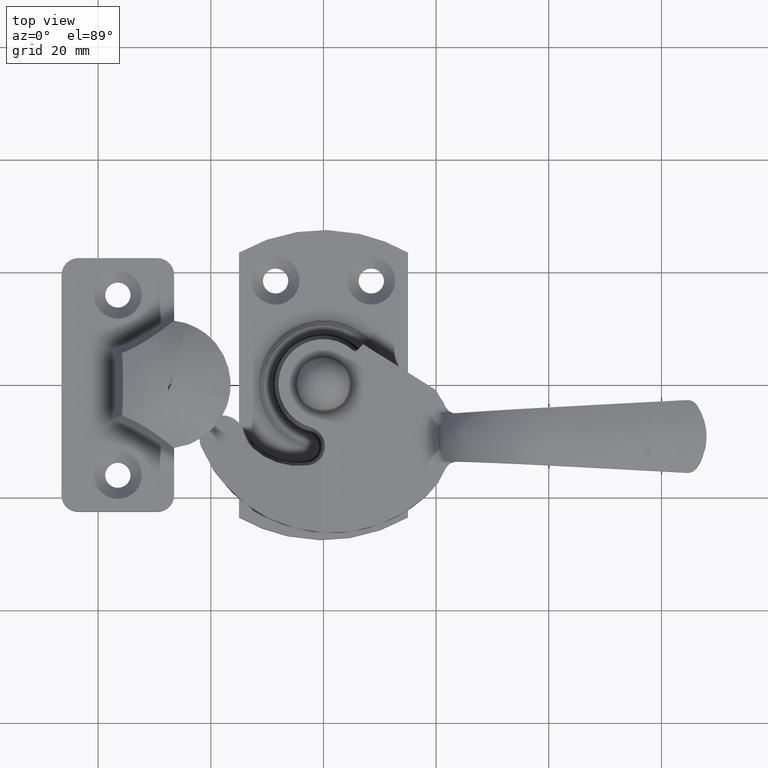
[diagram: clean part render]
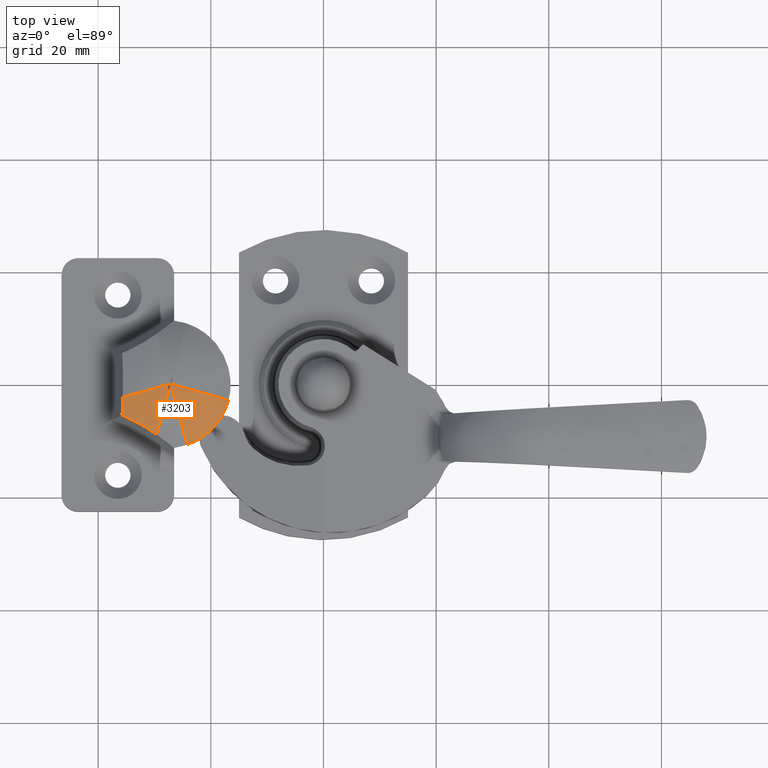
[diagram: same view with one face highlighted and labeled with its STEP entity id]
A machine part, top view. The second image highlights one B-rep face of the part: STEP entity #3203.
In plain terms, the highlighted face is a freeform B-spline surface patch.
Its self-contained STEP definition (entity closure, byte-faithful):
#2411=CARTESIAN_POINT('',(18.365678131114350,2.861039895896495,11.261993442719820));
#2412=VERTEX_POINT('',#2411);
#2432=CARTESIAN_POINT('',(25.677245148327948,10.757284593454560,10.931948783105479));
#2433=VERTEX_POINT('',#2432);
#2434=CARTESIAN_POINT('',(25.677245148327948,10.757284593454560,10.931948783105479));
#2435=CARTESIAN_POINT('',(25.240854001310929,10.607272521120469,11.043764852354400));
#2436=CARTESIAN_POINT('',(24.815644721128699,10.431518623313940,11.143332761826141));
#2437=CARTESIAN_POINT('',(23.987546524572931,10.028930021806969,11.318824244292779));
#2438=CARTESIAN_POINT('',(23.584655336992540,9.802100957825063,11.394751396718769));
#2439=CARTESIAN_POINT('',(22.997769002346921,9.422161176619554,11.490792908742771));
#2440=CARTESIAN_POINT('',(22.805056508404810,9.288880596470900,11.519823718875941));
#2441=CARTESIAN_POINT('',(22.520531366358060,9.078652507471537,11.558798271009399));
#2442=CARTESIAN_POINT('',(22.426635211187950,9.006987471722486,11.570999110479720));
#2443=CARTESIAN_POINT('',(22.241743401349709,8.861275313663517,11.593706198779060));
#2444=CARTESIAN_POINT('',(22.150595181073751,8.787116450533127,11.604233628197900));
#2445=CARTESIAN_POINT('',(21.701282657013959,8.409869640754010,11.652803633497470));
#2446=CARTESIAN_POINT('',(21.362331198463099,8.087497631274948,11.678695824224400));
#2447=CARTESIAN_POINT('',(20.725083793353441,7.401977305637913,11.705332435611069));
#2448=CARTESIAN_POINT('',(20.426783214629729,7.038833456865129,11.706076359383379));
#2449=CARTESIAN_POINT('',(20.080284481478540,6.558463704313647,11.690980942780790));
#2450=CARTESIAN_POINT('',(20.012262550301841,6.460981139793413,11.687150574156520));
#2451=CARTESIAN_POINT('',(19.879905746535041,6.264844894422555,11.677944244569771));
#2452=CARTESIAN_POINT('',(19.815439772635379,6.166015630656279,11.672564248461400));
#2453=CARTESIAN_POINT('',(19.627101937462310,5.867277745651619,11.654138004546780));
#2454=CARTESIAN_POINT('',(19.508285110038742,5.665121278559589,11.638807774179330));
#2455=CARTESIAN_POINT('',(19.171634609738678,5.049839594623275,11.583943469077230));
#2456=CARTESIAN_POINT('',(18.973527381739871,4.627935347721537,11.535563825986420));
#2457=CARTESIAN_POINT('',(18.715550964563160,3.977604648666230,11.445758744579940));
#2458=CARTESIAN_POINT('',(18.636108100965689,3.757907022318186,11.412943631017409));
#2459=CARTESIAN_POINT('',(18.526899431701992,3.423914684167026,11.359399816153701));
#2460=CARTESIAN_POINT('',(18.492149109989839,3.311800672463832,11.340822831160610));
#2461=CARTESIAN_POINT('',(18.426263904747810,3.087009633149371,11.302389102966830));
#2462=CARTESIAN_POINT('',(18.395090642445581,2.974220951707923,11.282515038120520));
#2463=CARTESIAN_POINT('',(18.365678131114350,2.861039895896490,11.261993442719820));
#2464=B_SPLINE_CURVE_WITH_KNOTS('',3,(#2434,#2435,#2436,#2437,#2438,#2439,#2440,#2441,#2442,#2443,#2444,#2445,#2446,#2447,#2448,#2449,#2450,#2451,#2452,#2453,#2454,#2455,#2456,#2457,#2458,#2459,#2460,#2461,#2462,#2463),.UNSPECIFIED.,.F.,.U.,(4,2,2,2,2,2,2,2,2,2,2,2,2,2,4),(0.0,0.124999999999999,0.249999999999998,0.312499999999997,0.343749999999997,0.374999999999997,0.499999999999997,0.624999999999996,0.656249999999996,0.687499999999996,0.749999999999997,0.874999999999998,0.937499999999999,0.968750000000000,1.0),.UNSPECIFIED.);
#2465=EDGE_CURVE('',#2433,#2412,#2464,.T.);
#2870=CARTESIAN_POINT('',(17.185327996081877,3.134791790010538,10.363983343183341));
#2871=CARTESIAN_POINT('',(17.598674372849629,3.022065937338569,10.706264618682408));
#2872=CARTESIAN_POINT('',(18.022289872309148,2.906482679786177,11.025947226188118));
#2873=CARTESIAN_POINT('',(18.888804623664434,2.670014710081690,11.622729442665488));
#2874=CARTESIAN_POINT('',(19.333395651057721,2.548661578945549,11.900682617931135));
#2875=CARTESIAN_POINT('',(20.677858980876408,2.181694472315221,12.663646759732851));
#2876=CARTESIAN_POINT('',(21.590426153214597,1.932486243733294,13.080660365395767));
#2877=CARTESIAN_POINT('',(23.443760669031427,1.426358517446661,13.754210075530986));
#2878=CARTESIAN_POINT('',(24.384556085363666,1.169383337960498,14.010498167923782));
#2879=CARTESIAN_POINT('',(26.292825474849881,0.648182793052967,14.369354594673640));
#2880=CARTESIAN_POINT('',(27.261528917694825,0.382918334876004,14.471438073972124));
#2881=CARTESIAN_POINT('',(28.293183906304638,0.102180935357565,14.496254273854836));
#2882=CARTESIAN_POINT('',(28.353901662644009,0.085671007899766,14.497408285774215));
#2883=CARTESIAN_POINT('',(28.475761857829028,0.052757893873617,14.499104540741435));
#2884=CARTESIAN_POINT('',(28.535401417515462,0.035885299775749,14.499647737873818));
#2885=CARTESIAN_POINT('',(28.616497445790362,0.016744890382303,14.499940973697834));
#2886=CARTESIAN_POINT('',(28.632791056820583,0.012544690088315,14.499982279737454));
#2887=CARTESIAN_POINT('',(28.673931208819919,0.009171570960723,14.500009715213817));
#2888=CARTESIAN_POINT('',(28.694563171611204,0.012737327576929,14.499984230548488));
#2889=CARTESIAN_POINT('',(28.745193223452063,0.023412602639526,14.499854633230242));
#2890=CARTESIAN_POINT('',(28.775176477807090,0.031657391664741,14.499691023032197));
#2891=CARTESIAN_POINT('',(28.866923658770848,0.055853048227450,14.498975413827981));
#2892=CARTESIAN_POINT('',(28.927184326709476,0.072238542399985,14.498196883218091));
#2893=CARTESIAN_POINT('',(29.228779537060518,0.154058660654774,14.492798568754241));
#2894=CARTESIAN_POINT('',(29.469049716385726,0.219767042804707,14.483659591685329));
#2895=CARTESIAN_POINT('',(30.189786511483216,0.416515241124263,14.441789748799991));
#2896=CARTESIAN_POINT('',(30.669926851603353,0.547664570239424,14.394545214879219));
#2897=CARTESIAN_POINT('',(32.104022014479398,0.939358199848610,14.194847017631195));
#2898=CARTESIAN_POINT('',(33.047297869558520,1.197021267361638,13.985614439865866));
#2899=CARTESIAN_POINT('',(34.907361181792638,1.705019433910360,13.411110663524129));
#2900=CARTESIAN_POINT('',(35.824153468287776,1.955403539474686,13.046013674127249));
#2901=CARTESIAN_POINT('',(37.627940312552873,2.447884192398131,12.142608613815252));
#2902=CARTESIAN_POINT('',(38.516630197730585,2.690489268285158,11.600929932378262));
#2903=CARTESIAN_POINT('',(39.354036935679844,2.918895729935312,10.982868027025312));
#2904=CARTESIAN_POINT('',(17.199141583266019,3.158000524204717,10.375375376536926));
#2905=CARTESIAN_POINT('',(17.612542061386911,3.044215383406191,10.717003876942075));
#2906=CARTESIAN_POINT('',(18.036108991301628,2.927603699678433,11.036009143655502));
#2907=CARTESIAN_POINT('',(18.902336848557241,2.689103806004705,11.631421074515286));
#2908=CARTESIAN_POINT('',(19.346685856461644,2.566747455029772,11.908680654246423));
#2909=CARTESIAN_POINT('',(20.690164150146870,2.196811395858761,12.669611587797714));
#2910=CARTESIAN_POINT('',(21.601746057014090,1.945738536238633,13.085377900367863));
#2911=CARTESIAN_POINT('',(23.452644701369188,1.435950841717146,13.756796165652364));
#2912=CARTESIAN_POINT('',(24.391992645253438,1.177202722819779,14.012215657461198));
#2913=CARTESIAN_POINT('',(26.297081840366097,0.652466420201220,14.369824742641656));
#2914=CARTESIAN_POINT('',(27.264060810553602,0.385450012948784,14.471540772766195));
#2915=CARTESIAN_POINT('',(28.293855948444961,0.102856646542295,14.496267753805133));
#2916=CARTESIAN_POINT('',(28.354464119141664,0.086237525088111,14.497417613238621));
#2917=CARTESIAN_POINT('',(28.476104303061000,0.053106748044091,14.499107763806819));
#2918=CARTESIAN_POINT('',(28.535636155352616,0.036122584920879,14.499649005835957));
#2919=CARTESIAN_POINT('',(28.616585711141166,0.016855612625714,14.499941186150574));
#2920=CARTESIAN_POINT('',(28.632849892558610,0.012627639305920,14.499982343574340));
#2921=CARTESIAN_POINT('',(28.673915736354921,0.009232216064017,14.500009680188349));
#2922=CARTESIAN_POINT('',(28.694510433205860,0.012821550517640,14.499984287289603));
#2923=CARTESIAN_POINT('',(28.745049037346956,0.023567414056239,14.499855156506698));
#2924=CARTESIAN_POINT('',(28.774978138171143,0.031866720730550,14.499692135161942));
#2925=CARTESIAN_POINT('',(28.866559626945410,0.056222372603933,14.498979101584631));
#2926=CARTESIAN_POINT('',(28.926711486865262,0.072716222091915,14.498203372902401));
#2927=CARTESIAN_POINT('',(29.227762388609310,0.155077439336090,14.492824481434587));
#2928=CARTESIAN_POINT('',(29.467599714250479,0.221220521707652,14.483718374284111));
#2929=CARTESIAN_POINT('',(30.187045008296984,0.419272421578177,14.441998677188529));
#2930=CARTESIAN_POINT('',(30.666334586405036,0.551293151767994,14.394923029033460));
#2931=CARTESIAN_POINT('',(32.097955067355329,0.945608834052207,14.195928653939035));
#2932=CARTESIAN_POINT('',(33.039691570328884,1.205020143504783,13.987422146103281));
#2933=CARTESIAN_POINT('',(34.897070630366414,1.716607442814842,13.414801776509210));
#2934=CARTESIAN_POINT('',(35.812723797982706,1.968812325552884,13.050848144383609));
#2935=CARTESIAN_POINT('',(37.614828559857763,2.465104962383238,12.149997179964224));
#2936=CARTESIAN_POINT('',(38.502978031125529,2.709683174578553,11.609717746299337));
#2937=CARTESIAN_POINT('',(39.340239426440803,2.940148898308866,10.993010376031425));
#2938=CARTESIAN_POINT('',(20.299078095944825,8.366321982095169,12.931885837989038));
#2939=CARTESIAN_POINT('',(20.696112890771396,7.969288916569155,13.104947867009741));
#2940=CARTESIAN_POINT('',(21.082192603703152,7.583211094482979,13.253910438478069));
#2941=CARTESIAN_POINT('',(21.836813891510218,6.828594111593560,13.516210481362291));
#2942=CARTESIAN_POINT('',(22.206672141250817,6.458738284156492,13.629818399808521));
#2943=CARTESIAN_POINT('',(23.283136310118380,5.382282560967351,13.926533192958445));
#2944=CARTESIAN_POINT('',(23.959475939848659,4.705949807403074,14.067954552434772));
#2945=CARTESIAN_POINT('',(25.268678441755632,3.396770417966808,14.285433020805092));
#2946=CARTESIAN_POINT('',(25.901277703490457,2.764183922145918,14.360788295202299));
#2947=CARTESIAN_POINT('',(27.152339313047573,1.513201738813508,14.464294440173999));
#2948=CARTESIAN_POINT('',(27.771358628912211,0.892704796127655,14.492117818118727));
#2949=CARTESIAN_POINT('',(28.428415298335434,0.238150629281306,14.498966771081072));
#2950=CARTESIAN_POINT('',(28.467078110574302,0.199664540440762,14.499285140773390));
#2951=CARTESIAN_POINT('',(28.544664809553620,0.122950379628109,14.499753049460750));
#2952=CARTESIAN_POINT('',(28.582631995810335,0.083628410819779,14.499902859013764));
#2953=CARTESIAN_POINT('',(28.634256788444990,0.039022649912344,14.499983720042550));
#2954=CARTESIAN_POINT('',(28.644629029763518,0.029234386287627,14.499995123959671));
#2955=CARTESIAN_POINT('',(28.670818092724762,0.021373585781493,14.500002667963493));
#2956=CARTESIAN_POINT('',(28.683952005619631,0.029683300790115,14.499995647075163));
#2957=CARTESIAN_POINT('',(28.716182331314247,0.054561355209810,14.499959918803562));
#2958=CARTESIAN_POINT('',(28.735269470968383,0.073775531192730,14.499914789549621));
#2959=CARTESIAN_POINT('',(28.793677035037163,0.130164582964150,14.499717425117861));
#2960=CARTESIAN_POINT('',(28.832042454243229,0.168354258717275,14.499502696855252));
#2961=CARTESIAN_POINT('',(29.024084669423328,0.359081602066342,14.498013336238403));
#2962=CARTESIAN_POINT('',(29.177171765280935,0.512344849318938,14.495492225637154));
#2963=CARTESIAN_POINT('',(29.637295143066265,0.972166027749213,14.483894799732710));
#2964=CARTESIAN_POINT('',(29.945032944656230,1.279886857773504,14.470785459755341));
#2965=CARTESIAN_POINT('',(30.872952893419473,2.207700019501087,14.414326276567564));
#2966=CARTESIAN_POINT('',(31.494854622777286,2.829589336981100,14.354566706366107));
#2967=CARTESIAN_POINT('',(32.773367855125741,4.108071772632584,14.176551712491877));
#2968=CARTESIAN_POINT('',(33.429734658367359,4.764430287128389,14.058794113881399));
#2969=CARTESIAN_POINT('',(34.811833069212739,6.146515200665086,13.729505128246366));
#2970=CARTESIAN_POINT('',(35.540302233288635,6.874979664616300,13.516773554587838));
#2971=CARTESIAN_POINT('',(36.295491473612806,7.630165029155010,13.231160453575619));
#2972=CARTESIAN_POINT('',(25.510506745581900,11.468133871938306,10.373810737259399));
#2973=CARTESIAN_POINT('',(25.624149768263390,11.054743542081454,10.715527294857583));
#2974=CARTESIAN_POINT('',(25.740623585110949,10.631173192528626,11.034623924476579));
#2975=CARTESIAN_POINT('',(25.978851375776092,9.764913776833064,11.630220659845847));
#2976=CARTESIAN_POINT('',(26.101073530878534,9.320536145957478,11.907573770623557));
#2977=CARTESIAN_POINT('',(26.470613067240404,7.976938970910407,12.668778844902723));
#2978=CARTESIAN_POINT('',(26.721437632861782,7.065235533668120,13.084713306427494));
#2979=CARTESIAN_POINT('',(27.230742219774992,5.214045881012951,13.756418875741225));
#2980=CARTESIAN_POINT('',(27.489257036245416,4.274523438620244,14.011955435729126));
#2981=CARTESIAN_POINT('',(28.013551415881864,2.369131398902076,14.369732622547176));
#2982=CARTESIAN_POINT('',(28.279694197640861,1.399603077392442,14.471498173409254));
#2983=CARTESIAN_POINT('',(28.563117623387008,0.373482962063928,14.496237174161561));
#2984=CARTESIAN_POINT('',(28.579798307584870,0.313137241062952,14.497387594353867));
#2985=CARTESIAN_POINT('',(28.613276328410681,0.192836005441838,14.499078565568963));
#2986=CARTESIAN_POINT('',(28.629660793204923,0.131164785862118,14.499620116907522));
#2987=CARTESIAN_POINT('',(28.651939876276774,0.061204447693938,14.499912383386931));
#2988=CARTESIAN_POINT('',(28.656416133575195,0.045852245798670,14.499953655041814));
#2989=CARTESIAN_POINT('',(28.667718349036523,0.033523117640284,14.499980838997564));
#2990=CARTESIAN_POINT('',(28.673386458639722,0.046556356923632,14.499955491104048));
#2991=CARTESIAN_POINT('',(28.687295784297888,0.085575682797958,14.499826374311766));
#2992=CARTESIAN_POINT('',(28.695532925322844,0.115711310404034,14.499663219701786));
#2993=CARTESIAN_POINT('',(28.720738146816398,0.204149161964219,14.498949847055979));
#2994=CARTESIAN_POINT('',(28.737293249075734,0.264040004593356,14.498173734983741));
#2995=CARTESIAN_POINT('',(28.820149050048045,0.563101776043457,14.492792228423273));
#2996=CARTESIAN_POINT('',(28.886157572950712,0.803273564990731,14.483681689871933));
#2997=CARTESIAN_POINT('',(29.084164327096975,1.522418472880356,14.441941759422074));
#2998=CARTESIAN_POINT('',(29.216075030946165,2.001795783717603,14.394843352004520));
#2999=CARTESIAN_POINT('',(29.610083675445924,3.433581391499798,14.195754126649637));
#3000=CARTESIAN_POINT('',(29.869264876018462,4.375505312989443,13.987149765499954));
#3001=CARTESIAN_POINT('',(30.380381980910737,6.233196758349898,13.414275543024591));
#3002=CARTESIAN_POINT('',(30.632345122226592,7.148989950309243,13.050167787153189));
#3003=CARTESIAN_POINT('',(31.128129859273876,8.951299348939820,12.148972478100944));
#3004=CARTESIAN_POINT('',(31.372444127003742,9.839513912646773,11.608504338808713));
#3005=CARTESIAN_POINT('',(31.602633853054030,10.676788460084198,10.991614307836327));
#3006=CARTESIAN_POINT('',(25.536837251406553,11.483805635196200,10.360886179356397));
#3007=CARTESIAN_POINT('',(25.649278908459518,11.070476951506082,10.703343115632126));
#3008=CARTESIAN_POINT('',(25.764586316521907,10.646851754129678,11.023208027821395));
#3009=CARTESIAN_POINT('',(26.000509425260081,9.780267321278807,11.620359121644913));
#3010=CARTESIAN_POINT('',(26.121593628062040,9.335615323568733,11.898499044207629));
#3011=CARTESIAN_POINT('',(26.487765242723778,7.990901112583432,12.662010725497735));
#3012=CARTESIAN_POINT('',(26.736474427237646,7.078080061682222,13.079360300817218));
#3013=CARTESIAN_POINT('',(27.241626477979167,5.224126947484629,13.753484248124623));
#3014=CARTESIAN_POINT('',(27.498129602515597,4.282962205532379,14.010006391053880));
#3015=CARTESIAN_POINT('',(28.018411698536102,2.373961869893462,14.369198959399091));
#3016=CARTESIAN_POINT('',(28.282571224056984,1.402471969193824,14.471381472422413));
#3017=CARTESIAN_POINT('',(28.563880526068985,0.374249432869816,14.496221714763889));
#3018=CARTESIAN_POINT('',(28.580436732412679,0.313779927921877,14.497376847027505));
#3019=CARTESIAN_POINT('',(28.613664948824240,0.193231842485802,14.499074745245295));
#3020=CARTESIAN_POINT('',(28.629927171619467,0.131434039275335,14.499618515412294));
#3021=CARTESIAN_POINT('',(28.652040036852540,0.061330089870127,14.499911979321739));
#3022=CARTESIAN_POINT('',(28.656482898185363,0.045946372814943,14.499953420153222));
#3023=CARTESIAN_POINT('',(28.667700791429478,0.033591935170890,14.499980715353654));
#3024=CARTESIAN_POINT('',(28.673326613178620,0.046651929431765,14.499955263652261));
#3025=CARTESIAN_POINT('',(28.687132165463741,0.085751353781398,14.499825617890664));
#3026=CARTESIAN_POINT('',(28.695307851083466,0.115948841459001,14.499661794769352));
#3027=CARTESIAN_POINT('',(28.720325017369685,0.204568214254891,14.498945499456124));
#3028=CARTESIAN_POINT('',(28.736756596575866,0.264581961590650,14.498166207841869));
#3029=CARTESIAN_POINT('',(28.818994147677085,0.564257157253325,14.492762660906745));
#3030=CARTESIAN_POINT('',(28.884509958384353,0.804920695619898,14.483614822993008));
#3031=CARTESIAN_POINT('',(29.081036361127730,1.525530161604198,14.441704514129251));
#3032=CARTESIAN_POINT('',(29.211958193660543,2.005872811385789,14.394414464005827));
#3033=CARTESIAN_POINT('',(29.602991192758548,3.440466144318147,14.194526589255275));
#3034=CARTESIAN_POINT('',(29.860188658425084,4.384136684962153,13.985098352399287));
#3035=CARTESIAN_POINT('',(30.367233392265558,6.244873548655234,13.410087112205018));
#3036=CARTESIAN_POINT('',(30.617130788243511,7.161959001150930,13.044682109309361));
#3037=CARTESIAN_POINT('',(31.108591075324433,8.966176245468846,12.140589151807745));
#3038=CARTESIAN_POINT('',(31.350667189515381,9.855003517944038,11.598533687610127));
#3039=CARTESIAN_POINT('',(31.578521241604214,10.692442471555156,10.980107181389625));
#3047=(BOUNDED_SURFACE()B_SPLINE_SURFACE(3,2,((#2870,#2904,#2938,#2972,#3006),(#2871,#2905,#2939,#2973,#3007),(#2872,#2906,#2940,#2974,#3008),(#2873,#2907,#2941,#2975,#3009),(#2874,#2908,#2942,#2976,#3010),(#2875,#2909,#2943,#2977,#3011),(#2876,#2910,#2944,#2978,#3012),(#2877,#2911,#2945,#2979,#3013),(#2878,#2912,#2946,#2980,#3014),(#2879,#2913,#2947,#2981,#3015),(#2880,#2914,#2948,#2982,#3016),(#2881,#2915,#2949,#2983,#3017),(#2882,#2916,#2950,#2984,#3018),(#2883,#2917,#2951,#2985,#3019),(#2884,#2918,#2952,#2986,#3020),(#2885,#2919,#2953,#2987,#3021),(#2886,#2920,#2954,#2988,#3022),(#2887,#2921,#2955,#2989,#3023),(#2888,#2922,#2956,#2990,#3024),(#2889,#2923,#2957,#2991,#3025),(#2890,#2924,#2958,#2992,#3026),(#2891,#2925,#2959,#2993,#3027),(#2892,#2926,#2960,#2994,#3028),(#2893,#2927,#2961,#2995,#3029),(#2894,#2928,#2962,#2996,#3030),(#2895,#2929,#2963,#2997,#3031),(#2896,#2930,#2964,#2998,#3032),(#2897,#2931,#2965,#2999,#3033),(#2898,#2932,#2966,#3000,#3034),(#2899,#2933,#2967,#3001,#3035),(#2900,#2934,#2968,#3002,#3036),(#2901,#2935,#2969,#3003,#3037),(#2902,#2936,#2970,#3004,#3038),(#2903,#2937,#2971,#3005,#3039)),.UNSPECIFIED.,.F.,.F.,.U.)B_SPLINE_SURFACE_WITH_KNOTS((4,2,2,2,2,2,2,2,2,2,2,2,2,2,2,2,4),(3,1,1,3),(0.0,1.934677435439593,3.869354870879211,7.738709741758397,11.608064612637611,15.477419483516821,15.719254162946781,15.961088842376720,16.021547512234200,16.082006182091700,16.202923521806660,16.444758201236631,17.412096918956440,19.346774354396029,23.216129225275239,27.085484096154449,30.954838967033659),(0.0,0.062036384115755,12.419905633317910,12.490301991277800),.UNSPECIFIED.)GEOMETRIC_REPRESENTATION_ITEM()RATIONAL_B_SPLINE_SURFACE(((1.001073452556543,1.000536726278271,0.893082208706535,1.000609055085177,1.001218110170353),(1.000991302321017,1.000495651160509,0.901264518845068,1.000562444717173,1.001124889434345),(1.000912741092789,1.000456370546394,0.909089357448616,1.000517870678703,1.001035741357407),(1.000763682001054,1.000381841000527,0.923935909132086,1.000433297590438,1.000866595180877),(1.000692958283834,1.000346479141917,0.930980117645263,1.000393170395852,1.000786340791704),(1.000496430121861,1.000248215060930,0.950554673481014,1.000281664325369,1.000563328650738),(1.000385679323667,1.000192839661834,0.961585650727916,1.000218826581478,1.000437653162956),(1.000204855925788,1.000102427962894,0.979595984018961,1.000116231073809,1.000232462147617),(1.000134762937166,1.000067381468583,0.986577370837553,1.000076461741764,1.000152923483528),(1.000036238891296,1.000018119445648,0.996390541721962,1.000020561207750,1.000041122415500),(1.000007912790362,1.000003956395181,0.999211871951585,1.000004489555853,1.000008979111705),(1.000001042596601,1.000000521298300,0.999896155517000,1.000000591548045,1.000001183096090),(1.000000723094820,1.000000361547410,0.999927978464866,1.000000410269252,1.000000820538503),(1.000000253457086,1.000000126728543,0.999974755221683,1.000000143806381,1.000000287612762),(1.000000103049936,1.000000051524968,0.999989736042436,1.000000058468431,1.000000116936863),(1.000000021866804,1.000000010933402,0.999997822027259,1.000000012406779,1.000000024813557),(1.000000010417191,1.000000005208596,0.999998962429168,1.000000005910502,1.000000011821004),(1.000000002843234,1.000000001421617,0.999999716808785,1.000000001613193,1.000000003226386),(1.000000009892104,1.000000004946052,0.999999014728756,1.000000005612578,1.000000011225156),(1.000000045763460,1.000000022881730,0.999995441877693,1.000000025965254,1.000000051930507),(1.000000091071914,1.000000045535957,0.999990929074761,1.000000051672346,1.000000103344693),(1.000000289206179,1.000000144603090,0.999971194548193,1.000000164089687,1.000000328179374),(1.000000504762290,1.000000252381145,0.999949724774663,1.000000286391828,1.000000572783655),(1.000001999335617,1.000000999667808,0.999800862602754,1.000001134382248,1.000002268764496),(1.000004529606835,1.000002264803418,0.999548843071561,1.000002570006527,1.000005140013054),(1.000016113164415,1.000008056582208,0.998395100054007,1.000009142280826,1.000018284561652),(1.000029179427427,1.000014589713714,0.997093676928019,1.000016555811944,1.000033111623889),(1.000084216057430,1.000042108028715,0.991611930311297,1.000047782473215,1.000095564946431),(1.000141762606692,1.000070881303346,0.985880191254726,1.000080433211479,1.000160866422959),(1.000297294722582,1.000148647361291,0.970388914807754,1.000168678961619,1.000337357923237),(1.000395297225134,1.000197648612567,0.960627690568994,1.000224283582592,1.000448567165184),(1.000631548932793,1.000315774466396,0.937096598656031,1.000358327982649,1.000716655965298),(1.000770473815375,1.000385236907688,0.923259432298844,1.000437151127350,1.000874302254701),(1.000922923490882,1.000461461745441,0.908075172417696,1.000523647963689,1.001047295927379)))REPRESENTATION_ITEM('')SURFACE());
#3048=CARTESIAN_POINT('',(31.142340583941952,8.917181539826339,12.135991090348760));
#3049=VERTEX_POINT('',#3048);
#3050=CARTESIAN_POINT('',(25.677245148327941,10.757284593454560,10.931948783105479));
#3051=CARTESIAN_POINT('',(25.871958005243830,10.056323693824391,11.454431349170370));
#3052=CARTESIAN_POINT('',(26.074884187540910,9.325795720476471,11.919941238275239));
#3053=CARTESIAN_POINT('',(26.496535370959830,7.807868223395193,12.741375110795250));
#3054=CARTESIAN_POINT('',(26.715261568864321,7.020464098651876,13.097290268948679));
#3055=CARTESIAN_POINT('',(26.998783687658840,5.999804607592306,13.472035978666000));
#3056=CARTESIAN_POINT('',(27.055974811617080,5.793920990065807,13.543416804719890));
#3057=CARTESIAN_POINT('',(27.170715239773461,5.380865370102156,13.678296413053310));
#3058=CARTESIAN_POINT('',(27.228345410800959,5.173402249129059,13.741905120430360));
#3059=CARTESIAN_POINT('',(27.402011078192800,4.548224654094582,13.921310241491041));
#3060=CARTESIAN_POINT('',(27.518820635777310,4.127725534820684,14.025700447869950));
#3061=CARTESIAN_POINT('',(27.754505224047008,3.279306075455330,14.204080034475449));
#3062=CARTESIAN_POINT('',(27.873533161802492,2.850833653514290,14.278094983356340));
#3063=CARTESIAN_POINT('',(28.111952231702510,1.992630283074897,14.394617651006721));
#3064=CARTESIAN_POINT('',(28.231517533637732,1.562238887340912,14.437303981502721));
#3065=CARTESIAN_POINT('',(28.411477165755660,0.914746307251863,14.478053347672841));
#3066=CARTESIAN_POINT('',(28.471538141306031,0.698589865073847,14.487752667786030));
#3067=CARTESIAN_POINT('',(28.561997629271460,0.373936110805658,14.496452073492421));
#3068=CARTESIAN_POINT('',(28.591965709106422,0.265579687823544,14.498376733167801));
#3069=CARTESIAN_POINT('',(28.630654228496919,0.130367235952200,14.499559209219271));
#3070=CARTESIAN_POINT('',(28.638329588138191,0.103280286704783,14.499734644898350));
#3071=CARTESIAN_POINT('',(28.649028869571520,0.069783613218785,14.499876975312841));
#3072=CARTESIAN_POINT('',(28.651224188641660,0.063104526010962,14.499901587433280));
#3073=CARTESIAN_POINT('',(28.654910373332900,0.053229518686197,14.499932595760800));
#3074=CARTESIAN_POINT('',(28.656196790913569,0.049958920932524,14.499941952453780));
#3075=CARTESIAN_POINT('',(28.658450476720521,0.045171403019211,14.499954391329670));
#3076=CARTESIAN_POINT('',(28.659255834821941,0.043586992315005,14.499958290533840));
#3077=CARTESIAN_POINT('',(28.661160279603450,0.040561844334850,14.499965361738800));
#3078=CARTESIAN_POINT('',(28.662229710766621,0.039006446348403,14.499968755318919));
#3079=CARTESIAN_POINT('',(28.664593675691510,0.037754942776035,14.499971409354490));
#3080=CARTESIAN_POINT('',(28.665549931079990,0.037639753638597,14.499971648277899));
#3081=CARTESIAN_POINT('',(28.667251530130791,0.038241761402940,14.499970379351151));
#3082=CARTESIAN_POINT('',(28.667953847860431,0.038833613457750,14.499969121075919));
#3083=CARTESIAN_POINT('',(28.669783081914641,0.040754588771499,14.499964908373491));
#3084=CARTESIAN_POINT('',(28.670710802712730,0.042297789150287,14.499961369021470));
#3085=CARTESIAN_POINT('',(28.673245373394099,0.046935856750261,14.499950071734490));
#3086=CARTESIAN_POINT('',(28.674595652011501,0.050190896593144,14.499941323848519));
#3087=CARTESIAN_POINT('',(28.678461035159231,0.060045063167773,14.499912048294039));
#3088=CARTESIAN_POINT('',(28.680689807902990,0.066731542260539,14.499888550427430));
#3089=CARTESIAN_POINT('',(28.691543963062681,0.100245853711682,14.499751821317060));
#3090=CARTESIAN_POINT('',(28.699212607581309,0.127383973440327,14.499580651555620));
#3091=CARTESIAN_POINT('',(28.714737529527351,0.181578578400704,14.499115520440940));
#3092=CARTESIAN_POINT('',(28.722395152875411,0.208704915404191,14.498821475402080));
#3093=CARTESIAN_POINT('',(28.791111565346970,0.452892805873996,14.495621838765331));
#3094=CARTESIAN_POINT('',(28.851229260305381,0.670111299751292,14.488844827855999));
#3095=CARTESIAN_POINT('',(28.971878951912661,1.104056103652541,14.467432956425981));
#3096=CARTESIAN_POINT('',(29.032151943930220,1.320960576416651,14.452786397591630));
#3097=CARTESIAN_POINT('',(29.332506322333028,2.401908903565426,14.360137952292940));
#3098=CARTESIAN_POINT('',(29.570139378250111,3.257393683316596,14.224136175564370));
#3099=CARTESIAN_POINT('',(29.863955461302861,4.315085596438310,13.976487703654040));
#3100=CARTESIAN_POINT('',(29.922643802382559,4.526355800257934,13.922966856774940));
#3101=CARTESIAN_POINT('',(30.039200242029459,4.945945161957360,13.808532429416420));
#3102=CARTESIAN_POINT('',(30.097045947424590,5.154183712213506,13.747656485222031));
#3103=CARTESIAN_POINT('',(30.269302303207098,5.774290481159285,13.554192526293550));
#3104=CARTESIAN_POINT('',(30.382433864079740,6.181555784521941,13.410782421078340));
#3105=CARTESIAN_POINT('',(30.716781520993031,7.385186076316998,12.937842806860390));
#3106=CARTESIAN_POINT('',(30.932976874742831,8.163479964645541,12.565826235565449));
#3107=CARTESIAN_POINT('',(31.142340583941952,8.917181539826345,12.135991090348760));
#3108=B_SPLINE_CURVE_WITH_KNOTS('',3,(#3050,#3051,#3052,#3053,#3054,#3055,#3056,#3057,#3058,#3059,#3060,#3061,#3062,#3063,#3064,#3065,#3066,#3067,#3068,#3069,#3070,#3071,#3072,#3073,#3074,#3075,#3076,#3077,#3078,#3079,#3080,#3081,#3082,#3083,#3084,#3085,#3086,#3087,#3088,#3089,#3090,#3091,#3092,#3093,#3094,#3095,#3096,#3097,#3098,#3099,#3100,#3101,#3102,#3103,#3104,#3105,#3106,#3107),.UNSPECIFIED.,.F.,.U.,(4,2,2,2,2,2,2,2,2,2,2,2,2,2,2,2,2,2,2,2,2,2,2,2,2,2,2,2,4),(0.0,0.124999999999917,0.249999999999834,0.281249999999813,0.312499999999792,0.374999999999750,0.437499999999709,0.499999999999667,0.531249999999646,0.546874999999635,0.550781249999633,0.551757812499632,0.552246093749632,0.552490234374632,0.552734374999632,0.552856445312132,0.552978515624632,0.553222656249632,0.553710937499632,0.554687499999633,0.558593749999636,0.562499999999640,0.593749999999665,0.624999999999691,0.749999999999794,0.781249999999820,0.812499999999845,0.874999999999897,1.0),.UNSPECIFIED.);
#3109=EDGE_CURVE('',#2433,#3049,#3108,.T.);
#3110=ORIENTED_EDGE('',*,*,#3109,.F.);
#3111=ORIENTED_EDGE('',*,*,#2465,.T.);
#3112=CARTESIAN_POINT('',(37.107540000000000,2.345069335652485,12.397474000000001));
#3113=VERTEX_POINT('',#3112);
#3114=CARTESIAN_POINT('',(37.107540000000000,2.345069335652485,12.397474000000001));
#3115=CARTESIAN_POINT('',(36.373008882044083,2.141035213954478,12.787538553657789));
#3116=CARTESIAN_POINT('',(35.621960011894039,1.932413320499397,13.121444356505460));
#3117=CARTESIAN_POINT('',(34.088605823992573,1.506490039945695,13.682988262258000));
#3118=CARTESIAN_POINT('',(33.306292561322920,1.289185928298586,13.910598985902871));
#3119=CARTESIAN_POINT('',(32.109338211188543,0.956715034041019,14.172177000583750));
#3120=CARTESIAN_POINT('',(31.706426095039308,0.844801810445144,14.246018147950711));
#3121=CARTESIAN_POINT('',(31.096036866787859,0.675266851825187,14.336315130900729));
#3122=CARTESIAN_POINT('',(30.891320307889600,0.618408266323088,14.363024673547081));
#3123=CARTESIAN_POINT('',(30.481484311323900,0.504584921910066,14.409333828133031));
#3124=CARTESIAN_POINT('',(30.276306786075381,0.447603605562073,14.428952289876101));
#3125=CARTESIAN_POINT('',(29.865430901245269,0.333512701588355,14.461133190404370));
#3126=CARTESIAN_POINT('',(29.659733755951169,0.276398739529364,14.473695627116481));
#3127=CARTESIAN_POINT('',(29.350784083876469,0.190677725811053,14.487240661347141));
#3128=CARTESIAN_POINT('',(29.247718258410490,0.162088654387597,14.490872721129440));
#3129=CARTESIAN_POINT('',(29.041523737697329,0.104989387510045,14.496364665940581));
#3130=CARTESIAN_POINT('',(28.938440914021211,0.076322320409967,14.498224853540931));
#3131=CARTESIAN_POINT('',(28.809337127271821,0.041315288237694,14.499442735746330));
#3132=CARTESIAN_POINT('',(28.783506552075981,0.034344216352934,14.499630936917530));
#3133=CARTESIAN_POINT('',(28.744643119917889,0.024353552652407,14.499830077047839));
#3134=CARTESIAN_POINT('',(28.731671325717102,0.021091288058072,14.499882603978650));
#3135=CARTESIAN_POINT('',(28.705572716575681,0.015177183156789,14.499959822882140));
#3136=CARTESIAN_POINT('',(28.692450348227780,0.012429263130947,14.499984563180741));
#3137=CARTESIAN_POINT('',(28.665775212072230,0.009894114963318,14.500004936737090));
#3138=CARTESIAN_POINT('',(28.652313722745230,0.010679344317033,14.500000128514239));
#3139=CARTESIAN_POINT('',(28.625859084225930,0.014877186746818,14.499961506763549));
#3140=CARTESIAN_POINT('',(28.612795185651450,0.017888083607893,14.499927942257710));
#3141=CARTESIAN_POINT('',(28.573736430248001,0.027291027398223,14.499785616851090));
#3142=CARTESIAN_POINT('',(28.547864038084391,0.034233972631033,14.499635061142911));
#3143=CARTESIAN_POINT('',(28.418561297596710,0.068966949473596,14.498605193137930));
#3144=CARTESIAN_POINT('',(28.315442089470441,0.097735949179772,14.496894075872451));
#3145=CARTESIAN_POINT('',(28.006053798049479,0.183380141878235,14.489104436433710));
#3146=CARTESIAN_POINT('',(27.800030286830591,0.240590762662522,14.480370300479921));
#3147=CARTESIAN_POINT('',(27.388352127030650,0.354874707021520,14.455827979529840));
#3148=CARTESIAN_POINT('',(27.182706512385629,0.411980671886381,14.440019795966560));
#3149=CARTESIAN_POINT('',(26.771795801610320,0.526093870105349,14.401312302774810));
#3150=CARTESIAN_POINT('',(26.566384585683529,0.583143053872183,14.378386403000521));
#3151=CARTESIAN_POINT('',(25.953586475333250,0.753341694348732,14.299323971765361));
#3152=CARTESIAN_POINT('',(25.548763113941991,0.865784489232649,14.232854802955030));
#3153=CARTESIAN_POINT('',(24.345186719701161,1.200091631016109,13.993011368597809));
#3154=CARTESIAN_POINT('',(23.557278230969459,1.418949491950393,13.779384676577040));
#3155=CARTESIAN_POINT('',(22.397141301082769,1.741202724363931,13.378293544390090));
#3156=CARTESIAN_POINT('',(22.014062361242789,1.847611642031576,13.231108810994970));
#3157=CARTESIAN_POINT('',(21.445011918838851,2.005678733311828,12.989662173397900));
#3158=CARTESIAN_POINT('',(21.256257269431082,2.058109819446971,12.905731933644111));
#3159=CARTESIAN_POINT('',(20.880635927209799,2.162447659727308,12.730862913136219));
#3160=CARTESIAN_POINT('',(20.693566122132520,2.214410833419777,12.639815350106700));
#3161=CARTESIAN_POINT('',(20.137621387407709,2.368838070587173,12.357189423625149));
#3162=CARTESIAN_POINT('',(19.773521054286981,2.469975980505430,12.155950806419771));
#3163=CARTESIAN_POINT('',(19.058472017054282,2.668598784005412,11.727648919717620));
#3164=CARTESIAN_POINT('',(18.708123682183938,2.765916911060597,11.500923364979011));
#3165=CARTESIAN_POINT('',(18.365678131114350,2.861039895896513,11.261993442719820));
#3166=B_SPLINE_CURVE_WITH_KNOTS('',3,(#3114,#3115,#3116,#3117,#3118,#3119,#3120,#3121,#3122,#3123,#3124,#3125,#3126,#3127,#3128,#3129,#3130,#3131,#3132,#3133,#3134,#3135,#3136,#3137,#3138,#3139,#3140,#3141,#3142,#3143,#3144,#3145,#3146,#3147,#3148,#3149,#3150,#3151,#3152,#3153,#3154,#3155,#3156,#3157,#3158,#3159,#3160,#3161,#3162,#3163,#3164,#3165),.UNSPECIFIED.,.F.,.U.,(4,2,2,2,2,2,2,2,2,2,2,2,2,2,2,2,2,2,2,2,2,2,2,2,2,4),(0.0,0.125000000000004,0.250000000000007,0.312500000000009,0.343750000000010,0.375000000000011,0.406250000000013,0.421875000000014,0.437500000000015,0.441406250000015,0.443359375000015,0.445312500000015,0.447265625000015,0.449218750000015,0.453125000000016,0.468750000000015,0.500000000000014,0.531250000000013,0.562500000000012,0.625000000000009,0.750000000000005,0.812500000000003,0.843750000000003,0.875000000000002,0.937500000000001,1.0),.UNSPECIFIED.);
#3167=EDGE_CURVE('',#3113,#2412,#3166,.T.);
#3168=ORIENTED_EDGE('',*,*,#3167,.F.);
#3169=CARTESIAN_POINT('',(37.265312976116547,5.500599312459159,11.963996323792500));
#3170=VERTEX_POINT('',#3169);
#3171=CARTESIAN_POINT('',(37.265312976116547,5.500599312459159,11.963996323792500));
#3172=CARTESIAN_POINT('',(37.213738677982008,4.985751192198637,12.105695539059351));
#3173=CARTESIAN_POINT('',(37.174525019014482,4.465488414534583,12.213434178360989));
#3174=CARTESIAN_POINT('',(37.121435612416398,3.413863424346898,12.359296119807240));
#3175=CARTESIAN_POINT('',(37.107539976607313,2.882509923967640,12.397474064271551));
#3176=CARTESIAN_POINT('',(37.107540000000000,2.345069335652485,12.397474000000001));
#3177=B_SPLINE_CURVE_WITH_KNOTS('',3,(#3171,#3172,#3173,#3174,#3175,#3176),.UNSPECIFIED.,.F.,.U.,(4,2,4),(0.0,0.500000000000000,1.0),.UNSPECIFIED.);
#3178=EDGE_CURVE('',#3170,#3113,#3177,.T.);
#3179=ORIENTED_EDGE('',*,*,#3178,.F.);
#3180=CARTESIAN_POINT('',(31.142340583941952,8.917181539826339,12.135991090348760));
#3181=CARTESIAN_POINT('',(31.607168614688810,8.583872273090822,12.326076983475570));
#3182=CARTESIAN_POINT('',(32.091089698712409,8.258869415183261,12.463533777224020));
#3183=CARTESIAN_POINT('',(32.719277218262881,7.862746459402954,12.571167556974819));
#3184=CARTESIAN_POINT('',(32.846223274916923,7.783948802114661,12.589478453500289));
#3185=CARTESIAN_POINT('',(33.101892496466327,7.627738182408320,12.619521467409911));
#3186=CARTESIAN_POINT('',(33.229998196122978,7.550699596948753,12.631188958388980));
#3187=CARTESIAN_POINT('',(33.615104997401758,7.322691288985474,12.656420930443730));
#3188=CARTESIAN_POINT('',(33.872894321295853,7.174823191008358,12.660233222223560));
#3189=CARTESIAN_POINT('',(34.649287644901769,6.743123541315536,12.634239279255340));
#3190=CARTESIAN_POINT('',(35.170897972843242,6.471121776328660,12.567237594664880));
#3191=CARTESIAN_POINT('',(35.827823455795880,6.150450357270511,12.422705244846320));
#3192=CARTESIAN_POINT('',(35.959455719695931,6.087288667378979,12.390740725806900));
#3193=CARTESIAN_POINT('',(36.223218025239113,5.962924023997797,12.320652989920490));
#3194=CARTESIAN_POINT('',(36.355613716640633,5.901604669373873,12.282434859148680));
#3195=CARTESIAN_POINT('',(36.749559864079387,5.722410716191533,12.159750805471470));
#3196=CARTESIAN_POINT('',(37.008960600165338,5.608761696188310,12.067031270931951));
#3197=CARTESIAN_POINT('',(37.265312976116547,5.500599312459159,11.963996323792500));
#3198=B_SPLINE_CURVE_WITH_KNOTS('',3,(#3180,#3181,#3182,#3183,#3184,#3185,#3186,#3187,#3188,#3189,#3190,#3191,#3192,#3193,#3194,#3195,#3196,#3197),.UNSPECIFIED.,.F.,.U.,(4,2,2,2,2,2,2,2,4),(0.0,0.250000000000000,0.312500000000001,0.375000000000001,0.500000000000002,0.750000000000004,0.812500000000003,0.875000000000002,1.0),.UNSPECIFIED.);
#3199=EDGE_CURVE('',#3049,#3170,#3198,.T.);
#3200=ORIENTED_EDGE('',*,*,#3199,.F.);
#3201=EDGE_LOOP('',(#3110,#3111,#3168,#3179,#3200));
#3202=FACE_OUTER_BOUND('',#3201,.T.);
#3203=ADVANCED_FACE('',(#3202),#3047,.T.);